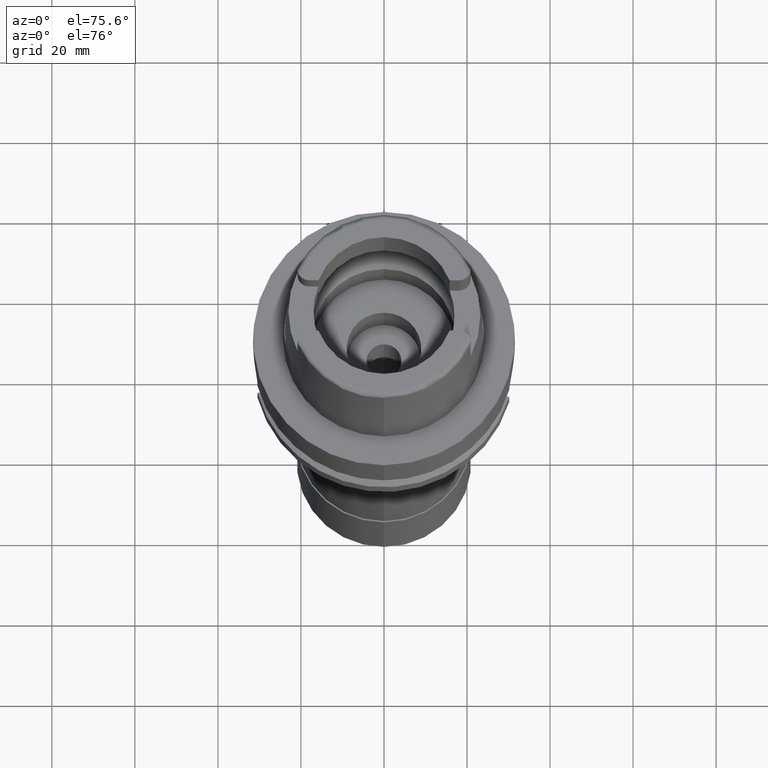
[diagram: clean part render]
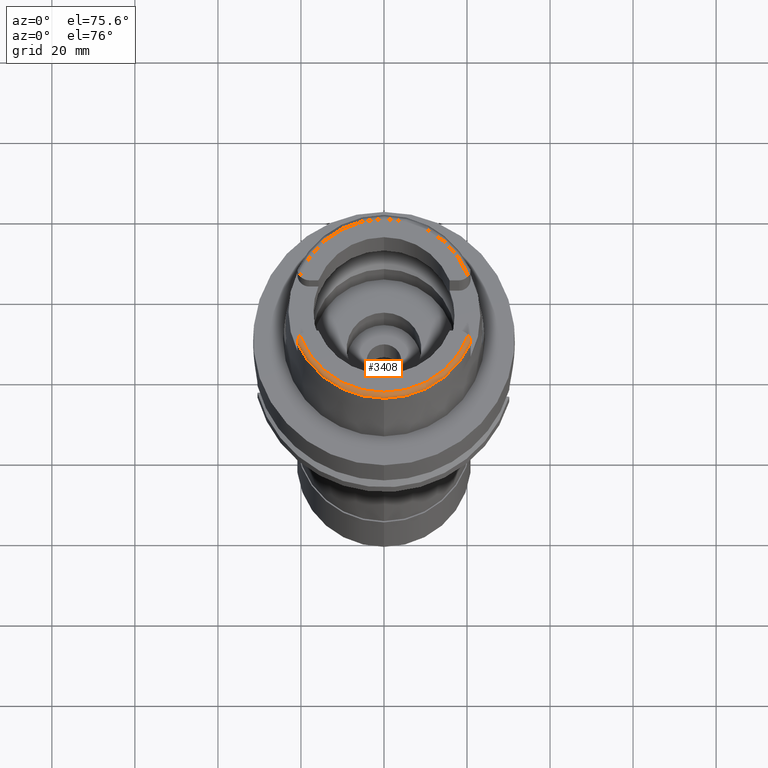
[diagram: same view with one face highlighted and labeled with its STEP entity id]
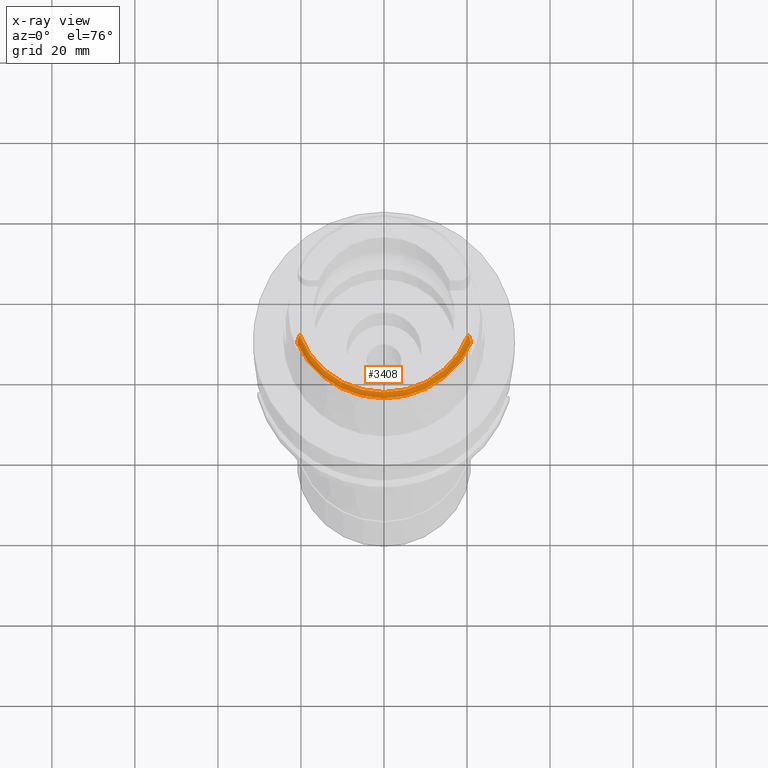
[diagram: x-ray of the same camera — body ghosted, the highlighted face saturated]
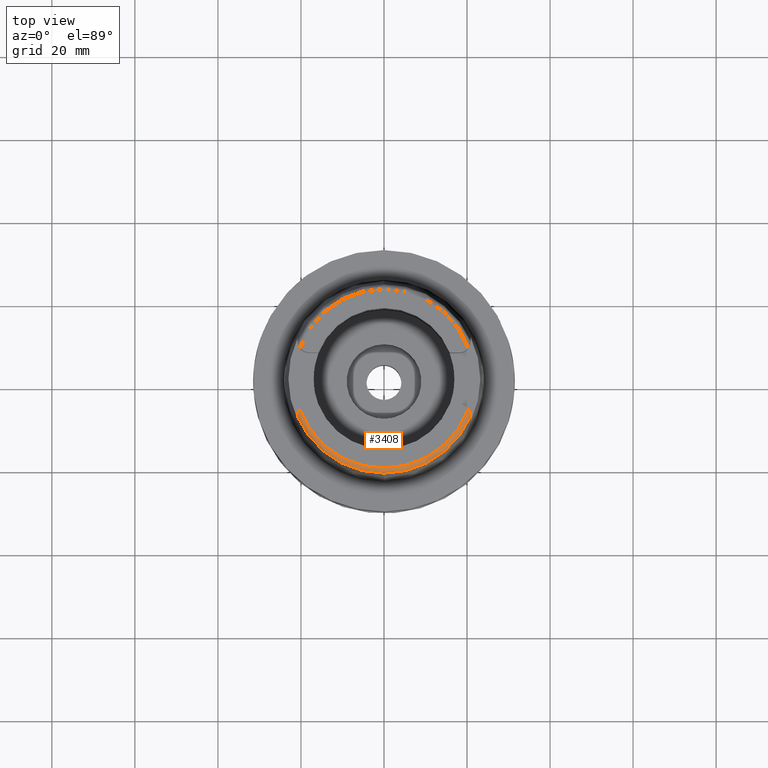
[diagram: same view with one face highlighted and labeled with its STEP entity id]
A machine part, auxiliary view. The second image highlights one B-rep face of the part: STEP entity #3408.
The next image is the same camera in x-ray: the body ghosted, the highlighted face saturated — about 0% of this face is hidden behind the body in this view.
A second angle (top view) of the same face is appended — the face is thin or edge-on in the first view.
In plain terms, the highlighted toroidal blend (fillet) surface has major radius 21.5735 mm and minor (blend) radius 1.2 mm.
Its self-contained STEP definition (entity closure, byte-faithful):
#221 = CARTESIAN_POINT ( 'NONE',  ( -20.86965299472058533, -9.104813629113099438, 30.91411736775525299 ) ) ;
#381 = CIRCLE ( 'NONE', #833, 22.77198729362000051 ) ;
#438 = CARTESIAN_POINT ( 'NONE',  ( -20.80013919064993999, -8.517919800962824084, 31.59109981799010924 ) ) ;
#466 = CARTESIAN_POINT ( 'NONE',  ( 20.49291247230398127, -7.665538808079960909, 31.96130718980397134 ) ) ;
#508 = B_SPLINE_CURVE_WITH_KNOTS ( 'NONE', 3,
 ( #4003, #221, #1924, #4448, #3589, #5284, #4032, #2113, #5415, #2509, #1281, #3691, #1721, #3801, #5465, #2455, #438, #5053, #3390, #3307, #3749, #5085, #2950, #4214, #5440, #1687, #4997, #2137, #4190, #2053, #3279 ),
 .UNSPECIFIED., .F., .F.,
 ( 4, 2, 2, 2, 2, 2, 2, 2, 2, 1, 2, 2, 1, 1, 2, 2, 4 ),
 ( 0.0000000000000000000, 0.1249999999999962252, 0.1874999999999950318, 0.2499999999999938383, 0.3749999999999980016, 0.4375000000000000555, 0.4687500000000011102, 0.5000000000000021094, 0.5624999999999976685, 0.5937499999999980016, 0.6093749999999994449, 0.6250000000000008882, 0.6874999999999971134, 0.7187499999999961142, 0.7343749999999964473, 0.7499999999999967804, 1.000000000000000000 ),
 .UNSPECIFIED. ) ;
#526 = CARTESIAN_POINT ( 'NONE',  ( 20.87000070298999788, -9.089787230666999562, 30.95643267133999998 ) ) ;
#539 = EDGE_CURVE ( 'NONE', #5111, #2842, #4592, .T. ) ;
#560 = AXIS2_PLACEMENT_3D ( 'NONE', #776, #2820, #1083 ) ;
#614 = VERTEX_POINT ( 'NONE', #2194 ) ;
#678 = CARTESIAN_POINT ( 'NONE',  ( 0.0000000000000000000, -22.77198729362000051, 30.85992712280000205 ) ) ;
#772 = EDGE_CURVE ( 'NONE', #2195, #2966, #508, .T. ) ;
#776 = CARTESIAN_POINT ( 'NONE',  ( 0.0000000000000000000, 0.0000000000000000000, 32.00000000000000000 ) ) ;
#822 = AXIS2_PLACEMENT_3D ( 'NONE', #2254, #1398, #1066 ) ;
#833 = AXIS2_PLACEMENT_3D ( 'NONE', #4476, #1094, #1587 ) ;
#884 = EDGE_LOOP ( 'NONE', ( #2429, #5182, #4292, #3202, #3411, #1303 ) ) ;
#891 = CARTESIAN_POINT ( 'NONE',  ( 20.60929399308108145, -7.890089531171620152, 31.89344362817106315 ) ) ;
#918 = CARTESIAN_POINT ( 'NONE',  ( 20.79506793225866446, -8.426382385775232464, 31.63294497122095450 ) ) ;
#927 = CARTESIAN_POINT ( 'NONE',  ( 20.87000527243999670, -9.108808682997000972, 30.87563105529000040 ) ) ;
#962 = CARTESIAN_POINT ( 'NONE',  ( 0.0000000000000000000, 0.0000000000000000000, 30.85992712280000205 ) ) ;
#1012 = FACE_OUTER_BOUND ( 'NONE', #884, .T. ) ;
#1065 = AXIS2_PLACEMENT_3D ( 'NONE', #962, #4786, #2637 ) ;
#1066 = DIRECTION ( 'NONE',  ( -0.0006539142454762719193, -0.9999997861980568503, 0.0000000000000000000 ) ) ;
#1083 = DIRECTION ( 'NONE',  ( 0.9401236264118068009, -0.3408336354621024911, 0.0000000000000000000 ) ) ;
#1094 = DIRECTION ( 'NONE',  ( 0.0000000000000000000, 0.0000000000000000000, -1.000000000000000000 ) ) ;
#1248 = CARTESIAN_POINT ( 'NONE',  ( 20.79900360614244903, -8.443443303192458060, 31.62227663223344365 ) ) ;
#1263 = EDGE_CURVE ( 'NONE', #2842, #1610, #4053, .T. ) ;
#1281 = CARTESIAN_POINT ( 'NONE',  ( -20.84151857781032291, -8.744487180003989835, 31.41993561127166856 ) ) ;
#1303 = ORIENTED_EDGE ( 'NONE', *, *, #772, .F. ) ;
#1307 = CARTESIAN_POINT ( 'NONE',  ( 20.80158863224703580, -8.454810987718738957, 31.61511745714934563 ) ) ;
#1398 = DIRECTION ( 'NONE',  ( 0.0000000000000000000, 0.0000000000000000000, 1.000000000000000000 ) ) ;
#1414 = CARTESIAN_POINT ( 'NONE',  ( 20.87000527243999670, -9.110771420352000050, 30.85992623711999983 ) ) ;
#1587 = DIRECTION ( 'NONE',  ( 0.0000000000000000000, -1.000000000000000000, 0.0000000000000000000 ) ) ;
#1610 = VERTEX_POINT ( 'NONE', #678 ) ;
#1685 = CARTESIAN_POINT ( 'NONE',  ( 20.87000000000000099, -9.070000000000000284, 31.00584217417999966 ) ) ;
#1687 = CARTESIAN_POINT ( 'NONE',  ( -20.66320029788937518, -8.078272375298624297, 31.83186458921624507 ) ) ;
#1721 = CARTESIAN_POINT ( 'NONE',  ( -20.83071173447270397, -8.675559604097358601, 31.47610022328973400 ) ) ;
#1843 = CARTESIAN_POINT ( 'NONE',  ( -20.86974104062000279, -9.111384045007000054, 30.85992599777999956 ) ) ;
#1924 = CARTESIAN_POINT ( 'NONE',  ( -20.86946387850837681, -9.089240767611377336, 30.96876552732002352 ) ) ;
#2053 = CARTESIAN_POINT ( 'NONE',  ( -20.41368872576236981, -7.576363661199094324, 31.99999999999999289 ) ) ;
#2081 = CARTESIAN_POINT ( 'NONE',  ( -20.26871835884000106, -7.388795116668999796, 32.00000000000000000 ) ) ;
#2113 = CARTESIAN_POINT ( 'NONE',  ( -20.86113423093601682, -8.919897599845080904, 31.24878594806486021 ) ) ;
#2137 = CARTESIAN_POINT ( 'NONE',  ( -20.64782175175315970, -8.040657682290270003, 31.84799049466045773 ) ) ;
#2194 = CARTESIAN_POINT ( 'NONE',  ( 20.28174256341000259, -7.352969181062000814, 32.00000000000000000 ) ) ;
#2195 = VERTEX_POINT ( 'NONE', #1843 ) ;
#2221 = CARTESIAN_POINT ( 'NONE',  ( 20.87000000000000099, -9.070000000000000284, 31.00584217417999966 ) ) ;
#2254 = CARTESIAN_POINT ( 'NONE',  ( 0.0000000000000000000, 0.0000000000000000000, 30.80000000000000071 ) ) ;
#2374 = EDGE_CURVE ( 'NONE', #1610, #2195, #381, .T. ) ;
#2429 = ORIENTED_EDGE ( 'NONE', *, *, #2374, .F. ) ;
#2455 = CARTESIAN_POINT ( 'NONE',  ( -20.80932137627371503, -8.560421828860604876, 31.56200506828595209 ) ) ;
#2499 = B_SPLINE_CURVE_WITH_KNOTS ( 'NONE', 3,
 ( #2563, #3415, #3799, #466, #3389, #5083, #2508, #891, #3747, #5439, #3827, #3331, #4633, #4213, #918, #1248, #1307, #2896, #4574, #2593, #2921, #4606, #3854, #4161, #1685 ),
 .UNSPECIFIED., .F., .F.,
 ( 4, 2, 1, 1, 2, 2, 2, 1, 1, 1, 2, 2, 2, 2, 4 ),
 ( 0.0000000000000000000, 0.1250000000000239531, 0.1875000000000376088, 0.2187500000000439648, 0.2343750000000471567, 0.2500000000000503486, 0.3750000000000774381, 0.4375000000000923706, 0.4687500000000990319, 0.4843750000001010858, 0.4921875000001021405, 0.5000000000001031397, 0.6250000000000784928, 0.7500000000000537348, 1.000000000000000000 ),
 .UNSPECIFIED. ) ;
#2508 = CARTESIAN_POINT ( 'NONE',  ( 20.59716399151478683, -7.864328047212041817, 31.90251225556076875 ) ) ;
#2509 = CARTESIAN_POINT ( 'NONE',  ( -20.84587215448603459, -8.776741354928166317, 31.39166360332315620 ) ) ;
#2563 = CARTESIAN_POINT ( 'NONE',  ( 20.28174256341000259, -7.352969181062000814, 32.00000000000000000 ) ) ;
#2593 = CARTESIAN_POINT ( 'NONE',  ( 20.83279410842608570, -8.610470821313665368, 31.51126837049449136 ) ) ;
#2637 = DIRECTION ( 'NONE',  ( 0.9164775804687985694, -0.4000860463675992573, 0.0000000000000000000 ) ) ;
#2820 = DIRECTION ( 'NONE',  ( 0.0000000000000000000, 0.0000000000000000000, -1.000000000000000000 ) ) ;
#2842 = VERTEX_POINT ( 'NONE', #1414 ) ;
#2896 = CARTESIAN_POINT ( 'NONE',  ( 20.80308489449608800, -8.461502009860002005, 31.61086904662237274 ) ) ;
#2921 = CARTESIAN_POINT ( 'NONE',  ( 20.85109322714884783, -8.738761696772764154, 31.41098448555345612 ) ) ;
#2950 = CARTESIAN_POINT ( 'NONE',  ( -20.73858209854253332, -8.288211142477097226, 31.72979972098028512 ) ) ;
#2966 = VERTEX_POINT ( 'NONE', #2081 ) ;
#3202 = ORIENTED_EDGE ( 'NONE', *, *, #5300, .F. ) ;
#3279 = CARTESIAN_POINT ( 'NONE',  ( -20.26871835884000106, -7.388795116668999796, 32.00000000000000000 ) ) ;
#3307 = CARTESIAN_POINT ( 'NONE',  ( -20.76681131756459564, -8.385895390338719224, 31.67378244356362771 ) ) ;
#3331 = CARTESIAN_POINT ( 'NONE',  ( 20.74387456397098362, -8.237691802746411440, 31.74093035615074143 ) ) ;
#3378 = CIRCLE ( 'NONE', #560, 21.57348458609000375 ) ;
#3389 = CARTESIAN_POINT ( 'NONE',  ( 20.53399336753668436, -7.737987224769135253, 31.94316993502454949 ) ) ;
#3390 = CARTESIAN_POINT ( 'NONE',  ( -20.77598970103873910, -8.419523009267923186, 31.65376201658336086 ) ) ;
#3408 = ADVANCED_FACE ( 'NONE', ( #1012 ), #4877, .T. ) ;
#3411 = ORIENTED_EDGE ( 'NONE', *, *, #4210, .T. ) ;
#3415 = CARTESIAN_POINT ( 'NONE',  ( 20.34625273727424855, -7.436066057207783686, 32.00000000000000000 ) ) ;
#3422 = CARTESIAN_POINT ( 'NONE',  ( 20.87000527243999670, -9.110771420352000050, 30.85992623711999983 ) ) ;
#3589 = CARTESIAN_POINT ( 'NONE',  ( -20.86786513363798079, -9.037865631010921774, 31.07908962302602518 ) ) ;
#3691 = CARTESIAN_POINT ( 'NONE',  ( -20.83358867420373528, -8.693159586250397197, 31.46209068727512204 ) ) ;
#3747 = CARTESIAN_POINT ( 'NONE',  ( 20.61599346146258682, -7.904635130313624636, 31.88816990076738378 ) ) ;
#3749 = CARTESIAN_POINT ( 'NONE',  ( -20.76051006451302783, -8.363354634989532244, 31.68699601449134917 ) ) ;
#3799 = CARTESIAN_POINT ( 'NONE',  ( 20.40750811939802034, -7.524645625116718861, 31.99032679745100083 ) ) ;
#3801 = CARTESIAN_POINT ( 'NONE',  ( -20.82443431493261343, -8.639393535129407553, 31.50403498334583574 ) ) ;
#3827 = CARTESIAN_POINT ( 'NONE',  ( 20.69833472841063227, -8.099832472355043222, 31.80993878389704577 ) ) ;
#3835 = CARTESIAN_POINT ( 'NONE',  ( 20.86999753952999725, -9.103321641135998732, 30.90740140364999888 ) ) ;
#3854 = CARTESIAN_POINT ( 'NONE',  ( 20.86950677604927407, -8.953752637404592818, 31.20438265732502714 ) ) ;
#3921 = CARTESIAN_POINT ( 'NONE',  ( 20.87000000000000099, -9.077219902053000666, 30.98931456560000086 ) ) ;
#4003 = CARTESIAN_POINT ( 'NONE',  ( -20.86974104062000279, -9.111384045007000054, 30.85992599777999956 ) ) ;
#4032 = CARTESIAN_POINT ( 'NONE',  ( -20.86542036310826731, -8.986148063561376631, 31.16144056502638549 ) ) ;
#4053 = CIRCLE ( 'NONE', #1065, 22.77198729362001117 ) ;
#4161 = CARTESIAN_POINT ( 'NONE',  ( 20.86999999999999744, -9.027127551694164254, 31.10398464751718706 ) ) ;
#4190 = CARTESIAN_POINT ( 'NONE',  ( -20.54148255448875560, -7.789820484523763078, 31.95135695829134903 ) ) ;
#4210 = EDGE_CURVE ( 'NONE', #614, #2966, #3378, .T. ) ;
#4213 = CARTESIAN_POINT ( 'NONE',  ( 20.78547546793454615, -8.386510829574518766, 31.65734479672171986 ) ) ;
#4214 = CARTESIAN_POINT ( 'NONE',  ( -20.71308523840940197, -8.209437009739518842, 31.77140004559814201 ) ) ;
#4292 = ORIENTED_EDGE ( 'NONE', *, *, #539, .F. ) ;
#4448 = CARTESIAN_POINT ( 'NONE',  ( -20.86837180458922347, -9.052395017880936479, 31.05142295105147809 ) ) ;
#4476 = CARTESIAN_POINT ( 'NONE',  ( 0.0000000000000000000, 0.0000000000000000000, 30.85992712280000205 ) ) ;
#4574 = CARTESIAN_POINT ( 'NONE',  ( 20.82060744341064051, -8.540843226256596310, 31.56018884729538954 ) ) ;
#4592 = B_SPLINE_CURVE_WITH_KNOTS ( 'NONE', 3,
 ( #2221, #3921, #526, #3835, #927, #3422 ),
 .UNSPECIFIED., .F., .F.,
 ( 4, 1, 1, 4 ),
 ( 0.0000000000000000000, 0.3333333333333000081, 0.6666666666667000474, 1.000000000000000000 ),
 .UNSPECIFIED. ) ;
#4606 = CARTESIAN_POINT ( 'NONE',  ( 20.85730737425596715, -8.798696643897740088, 31.35836297674278583 ) ) ;
#4633 = CARTESIAN_POINT ( 'NONE',  ( 20.76463560406661557, -8.306541045901807863, 31.70417258584256359 ) ) ;
#4786 = DIRECTION ( 'NONE',  ( 0.0000000000000000000, 0.0000000000000000000, -1.000000000000000000 ) ) ;
#4877 = TOROIDAL_SURFACE ( 'NONE', #822, 21.57348458609000019, 1.199999999999999956 ) ;
#4912 = CARTESIAN_POINT ( 'NONE',  ( 20.87000000000000099, -9.070000000000000284, 31.00584217417999966 ) ) ;
#4997 = CARTESIAN_POINT ( 'NONE',  ( -20.65254805384078551, -8.052075687867063181, 31.84316054358308534 ) ) ;
#5053 = CARTESIAN_POINT ( 'NONE',  ( -20.78437194641687213, -8.452585247296294568, 31.63314137783716262 ) ) ;
#5083 = CARTESIAN_POINT ( 'NONE',  ( 20.57872058361951773, -7.825922965452846825, 31.91566176527582144 ) ) ;
#5085 = CARTESIAN_POINT ( 'NONE',  ( -20.75777024043098962, -8.353737247891260154, 31.69256196329295250 ) ) ;
#5111 = VERTEX_POINT ( 'NONE', #4912 ) ;
#5182 = ORIENTED_EDGE ( 'NONE', *, *, #1263, .F. ) ;
#5284 = CARTESIAN_POINT ( 'NONE',  ( -20.86636228821923922, -9.004322853446618424, 31.13465136176987613 ) ) ;
#5300 = EDGE_CURVE ( 'NONE', #614, #5111, #2499, .T. ) ;
#5415 = CARTESIAN_POINT ( 'NONE',  ( -20.85675557429207316, -8.867469306404647256, 31.30634170763905999 ) ) ;
#5439 = CARTESIAN_POINT ( 'NONE',  ( 20.66261276259762525, -8.007705256054050480, 31.84993491856782910 ) ) ;
#5440 = CARTESIAN_POINT ( 'NONE',  ( -20.67885019597083129, -8.117588962711636213, 31.81453503459013277 ) ) ;
#5465 = CARTESIAN_POINT ( 'NONE',  ( -20.82135235864725331, -8.622470207635510420, 31.51676237902046296 ) ) ;